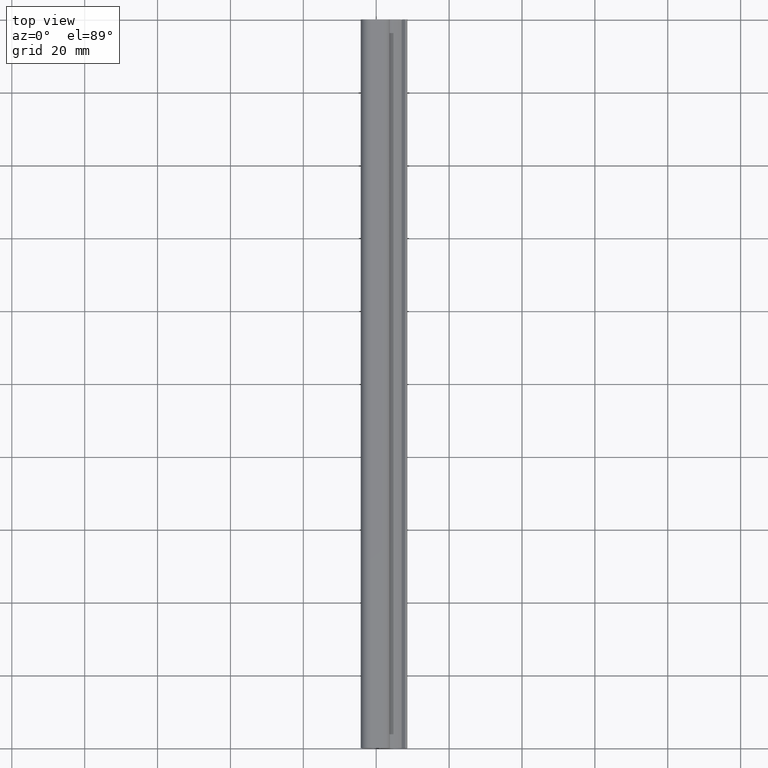
[diagram: clean part render]
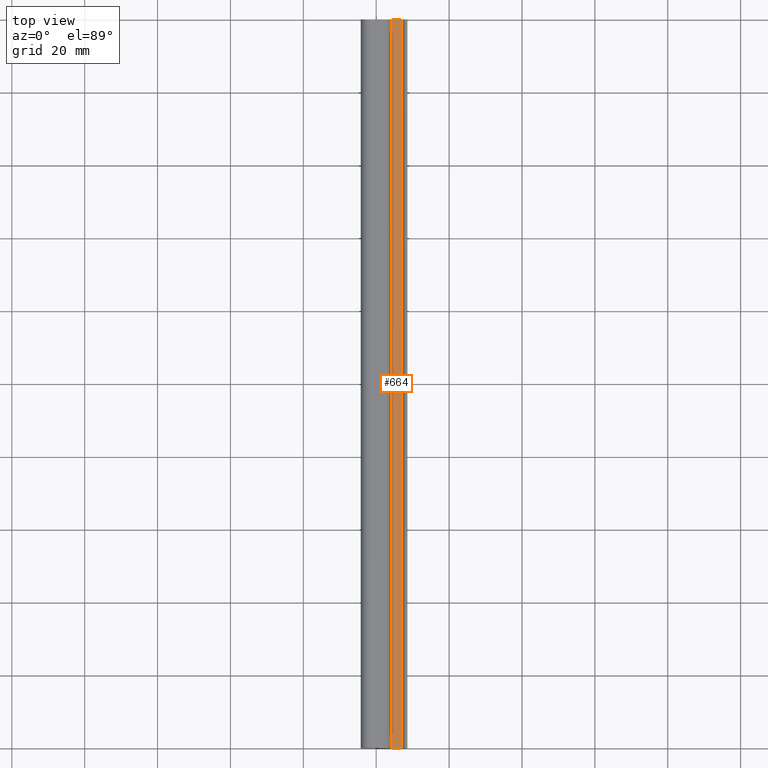
[diagram: same view with one face highlighted and labeled with its STEP entity id]
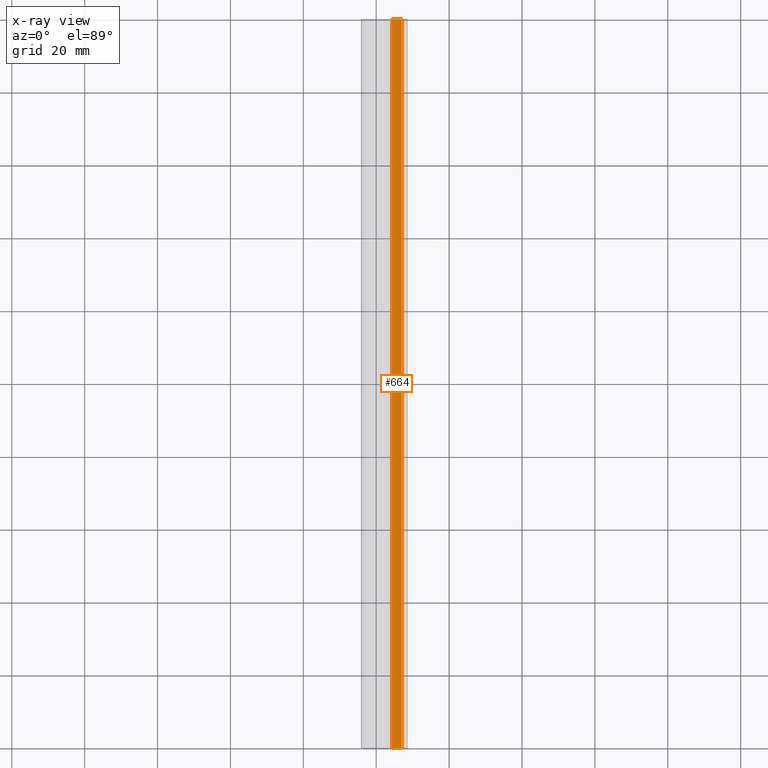
[diagram: x-ray of the same camera — body ghosted, the highlighted face saturated]
A machine part, top view. The second image highlights one B-rep face of the part: STEP entity #664.
The next image is the same camera in x-ray: the body ghosted, the highlighted face saturated — about 0% of this face is hidden behind the body in this view.
In plain terms, the highlighted face is a freeform B-spline surface patch.
Its self-contained STEP definition (entity closure, byte-faithful):
#92=CARTESIAN_POINT('',(6.973506387345700,0.0,-2.160163499012300));
#93=VERTEX_POINT('',#92);
#99=CARTESIAN_POINT('',(4.300000000001680,0.0,-1.199355311306026));
#100=VERTEX_POINT('',#99);
#101=CARTESIAN_POINT('',(6.973506387345700,0.0,-2.160163499012300));
#102=CARTESIAN_POINT('',(5.809401439051658,0.0,-1.199355311306000));
#103=CARTESIAN_POINT('',(4.300000000001680,0.0,-1.199355311306026));
#111=(BOUNDED_CURVE()B_SPLINE_CURVE(2,(#101,#102,#103),.UNSPECIFIED.,.F.,.U.)CURVE()GEOMETRIC_REPRESENTATION_ITEM()QUASI_UNIFORM_CURVE()RATIONAL_B_SPLINE_CURVE((1.0,0.941072830811786,1.0))REPRESENTATION_ITEM(''));
#112=EDGE_CURVE('',#93,#100,#111,.T.);
#360=CARTESIAN_POINT('',(4.300000000001680,200.0,-1.199355311306026));
#361=VERTEX_POINT('',#360);
#367=CARTESIAN_POINT('',(6.973506387345700,200.0,-2.160163499012300));
#368=VERTEX_POINT('',#367);
#369=CARTESIAN_POINT('',(6.973506387345715,200.0,-2.160163499012285));
#370=CARTESIAN_POINT('',(5.809401439051658,199.999999999999910,-1.199355311306000));
#371=CARTESIAN_POINT('',(4.300000000001680,200.0,-1.199355311306000));
#379=(BOUNDED_CURVE()B_SPLINE_CURVE(2,(#369,#370,#371),.UNSPECIFIED.,.F.,.U.)CURVE()GEOMETRIC_REPRESENTATION_ITEM()QUASI_UNIFORM_CURVE()RATIONAL_B_SPLINE_CURVE((1.0,0.941072830811786,1.0))REPRESENTATION_ITEM(''));
#380=EDGE_CURVE('',#368,#361,#379,.T.);
#630=CARTESIAN_POINT('',(4.300000000001680,200.0,-1.199355311306026));
#631=CARTESIAN_POINT('',(4.300000000001680,0.0,-1.199355311306026));
#632=QUASI_UNIFORM_CURVE('',1,(#630,#631),.UNSPECIFIED.,.F.,.U.);
#633=EDGE_CURVE('',#361,#100,#632,.T.);
#640=CARTESIAN_POINT('',(4.159122413064244,205.000000000000060,-1.201718654150135));
#641=CARTESIAN_POINT('',(4.159122413064244,-5.125000000000002,-1.201718654150135));
#642=CARTESIAN_POINT('',(5.829350039147792,205.0,-1.145663865034986));
#643=CARTESIAN_POINT('',(5.829350039147792,-5.125000000000000,-1.145663865034986));
#644=CARTESIAN_POINT('',(7.081507499580116,205.0,-2.252417747611910));
#645=CARTESIAN_POINT('',(7.081507499580116,-5.125000000000000,-2.252417747611910));
#653=(BOUNDED_SURFACE()B_SPLINE_SURFACE(1,2,((#640,#642,#644),(#641,#643,#645)),.UNSPECIFIED.,.F.,.F.,.U.)B_SPLINE_SURFACE_WITH_KNOTS((2,2),(3,3),(0.0,210.125000000000110),(0.0,3.219568519788882),.UNSPECIFIED.)GEOMETRIC_REPRESENTATION_ITEM()RATIONAL_B_SPLINE_SURFACE(((0.999848064281151,0.925101510770355,0.991457553574404),(0.999848064281151,0.925101510770355,0.991457553574404)))REPRESENTATION_ITEM('')SURFACE());
#654=ORIENTED_EDGE('',*,*,#112,.F.);
#655=CARTESIAN_POINT('',(6.973506387345700,200.0,-2.160163499012300));
#656=CARTESIAN_POINT('',(6.973506387345700,0.0,-2.160163499012300));
#657=QUASI_UNIFORM_CURVE('',1,(#655,#656),.UNSPECIFIED.,.F.,.U.);
#658=EDGE_CURVE('',#368,#93,#657,.T.);
#659=ORIENTED_EDGE('',*,*,#658,.F.);
#660=ORIENTED_EDGE('',*,*,#380,.T.);
#661=ORIENTED_EDGE('',*,*,#633,.T.);
#662=EDGE_LOOP('',(#654,#659,#660,#661));
#663=FACE_OUTER_BOUND('',#662,.T.);
#664=ADVANCED_FACE('',(#663),#653,.T.);